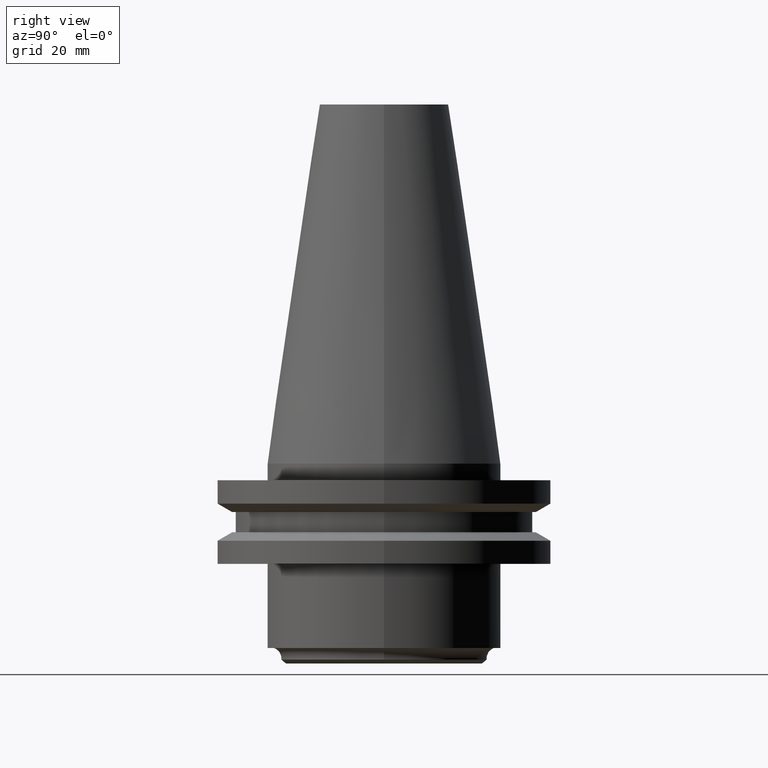
[diagram: clean part render]
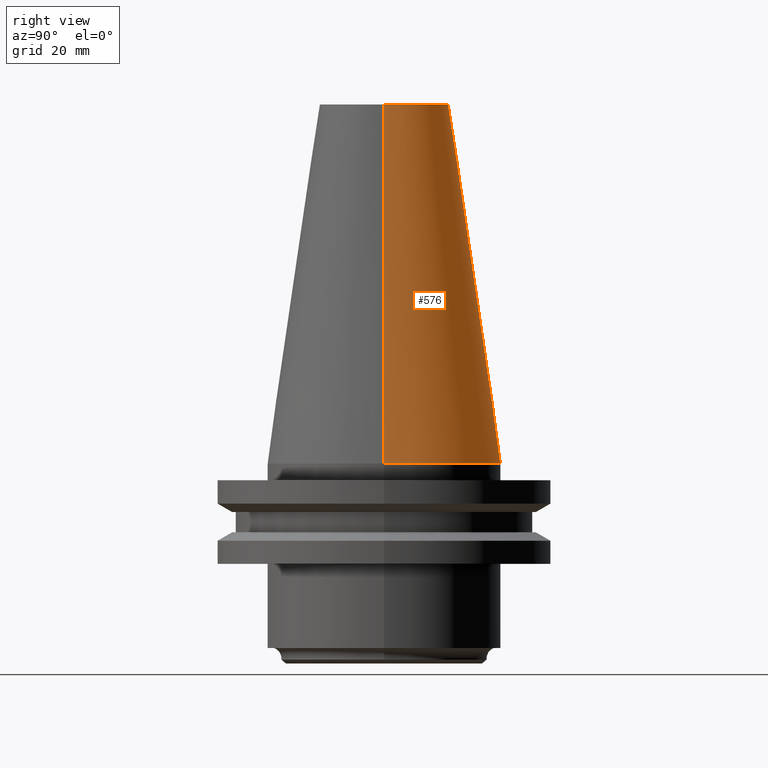
[diagram: same view with one face highlighted and labeled with its STEP entity id]
A machine part, right view. The second image highlights one B-rep face of the part: STEP entity #576.
In plain terms, the highlighted conical surface has half-angle 8.297 deg.
Its self-contained STEP definition (entity closure, byte-faithful):
#5 = FACE_OUTER_BOUND ( 'NONE', #678, .T. ) ;
#76 = CARTESIAN_POINT ( 'NONE',  ( -22.22500000000000142, 0.000000000000000000, 0.000000000000000000 ) ) ;
#109 = CARTESIAN_POINT ( 'NONE',  ( 0.000000000000000000, 0.000000000000000000, 0.000000000000000000 ) ) ;
#154 = EDGE_CURVE ( 'NONE', #739, #361, #434, .T. ) ;
#156 = CARTESIAN_POINT ( 'NONE',  ( 0.000000000000000000, 0.000000000000000000, 68.25000000000000000 ) ) ;
#169 = CONICAL_SURFACE ( 'NONE', #266, 22.22500000000000142, 0.1448138465474119174 ) ;
#199 = DIRECTION ( 'NONE',  ( 0.1443082272672999711, 1.767266086135276757E-17, -0.9895327864921755756 ) ) ;
#203 = VERTEX_POINT ( 'NONE', #384 ) ;
#210 = CARTESIAN_POINT ( 'NONE',  ( 22.22500000000000142, 2.721777511104992849E-15, 0.000000000000000000 ) ) ;
#216 = CARTESIAN_POINT ( 'NONE',  ( -22.22500000000000142, 0.000000000000000000, 0.000000000000000000 ) ) ;
#239 = CIRCLE ( 'NONE', #788, 12.27178102086201150 ) ;
#266 = AXIS2_PLACEMENT_3D ( 'NONE', #700, #376, #513 ) ;
#275 = DIRECTION ( 'NONE',  ( -0.000000000000000000, -0.000000000000000000, 1.000000000000000000 ) ) ;
#316 = EDGE_CURVE ( 'NONE', #521, #361, #667, .T. ) ;
#361 = VERTEX_POINT ( 'NONE', #216 ) ;
#376 = DIRECTION ( 'NONE',  ( 0.000000000000000000, 0.000000000000000000, -1.000000000000000000 ) ) ;
#378 = EDGE_CURVE ( 'NONE', #203, #739, #603, .T. ) ;
#384 = CARTESIAN_POINT ( 'NONE',  ( 12.27178102086201150, 2.112318622904291439E-15, 68.25000000000000000 ) ) ;
#402 = VECTOR ( 'NONE', #716, 999.9999999999998863 ) ;
#419 = EDGE_CURVE ( 'NONE', #203, #521, #239, .T. ) ;
#434 = CIRCLE ( 'NONE', #509, 22.22500000000000142 ) ;
#467 = ORIENTED_EDGE ( 'NONE', *, *, #316, .F. ) ;
#471 = DIRECTION ( 'NONE',  ( 1.000000000000000000, 0.000000000000000000, 0.000000000000000000 ) ) ;
#484 = VECTOR ( 'NONE', #199, 999.9999999999998863 ) ;
#509 = AXIS2_PLACEMENT_3D ( 'NONE', #109, #812, #516 ) ;
#513 = DIRECTION ( 'NONE',  ( -1.000000000000000000, 0.000000000000000000, 0.000000000000000000 ) ) ;
#516 = DIRECTION ( 'NONE',  ( 1.000000000000000000, 0.000000000000000000, 0.000000000000000000 ) ) ;
#521 = VERTEX_POINT ( 'NONE', #589 ) ;
#576 = ADVANCED_FACE ( 'NONE', ( #5 ), #169, .T. ) ;
#588 = CARTESIAN_POINT ( 'NONE',  ( 22.22500000000000142, 2.721777511104992849E-15, 0.000000000000000000 ) ) ;
#589 = CARTESIAN_POINT ( 'NONE',  ( -12.27178102086201150, 0.000000000000000000, 68.25000000000000000 ) ) ;
#603 = LINE ( 'NONE', #210, #484 ) ;
#667 = LINE ( 'NONE', #76, #402 ) ;
#678 = EDGE_LOOP ( 'NONE', ( #711, #734, #785, #467 ) ) ;
#700 = CARTESIAN_POINT ( 'NONE',  ( 0.000000000000000000, 0.000000000000000000, 0.000000000000000000 ) ) ;
#711 = ORIENTED_EDGE ( 'NONE', *, *, #419, .F. ) ;
#716 = DIRECTION ( 'NONE',  ( -0.1443082272672999711, 0.000000000000000000, -0.9895327864921755756 ) ) ;
#734 = ORIENTED_EDGE ( 'NONE', *, *, #378, .T. ) ;
#739 = VERTEX_POINT ( 'NONE', #588 ) ;
#785 = ORIENTED_EDGE ( 'NONE', *, *, #154, .T. ) ;
#788 = AXIS2_PLACEMENT_3D ( 'NONE', #156, #275, #471 ) ;
#812 = DIRECTION ( 'NONE',  ( -0.000000000000000000, -0.000000000000000000, 1.000000000000000000 ) ) ;